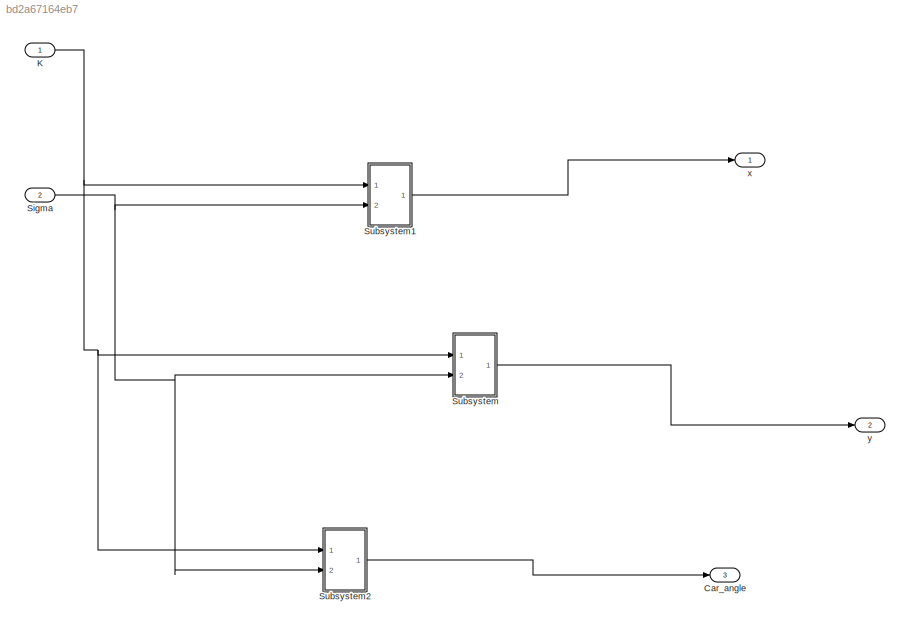
MODEL slx_bd2a67164eb7
KIND model
CONFIG AbsTol = auto
CONFIG EnableMultiTasking = off
CONFIG FixedStep = auto
CONFIG MaxStep = auto
CONFIG MinStep = auto
CONFIG RelTol = 1e-3
CONFIG SampleTimeConstraint = Unconstrained
CONFIG Solver = VariableStepAuto
CONFIG SolverName = VariableStepAuto
CONFIG StartTime = 0.0
CONFIG StopTime = 10.0
BLOCK [Outport] Car_angle
  IconDisplay = Port number
  Port = 3
BLOCK [Inport] K
  IconDisplay = Port number
BLOCK [Inport] Sigma
  IconDisplay = Port number
  Port = 2
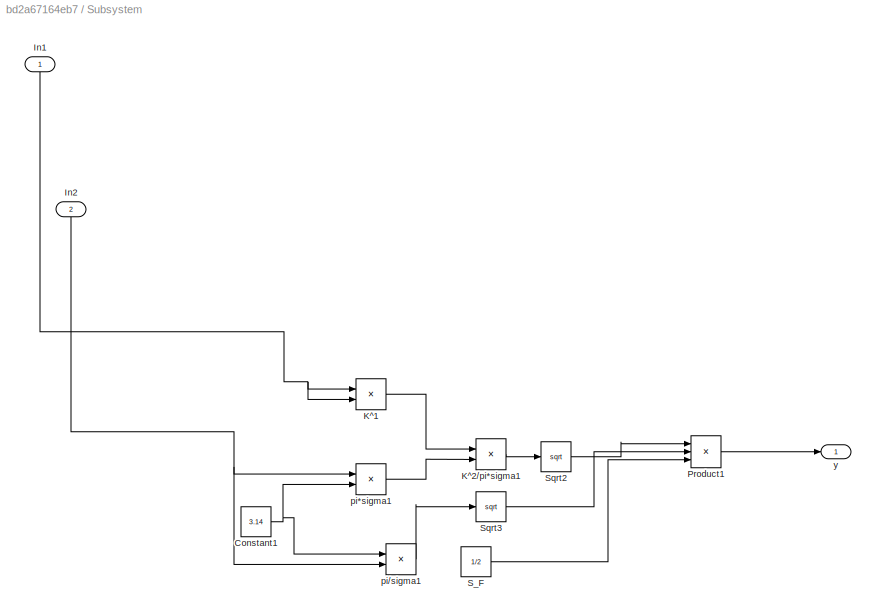
BLOCK [SubSystem] Subsystem
  Ports = [2, 1]
  RequestExecContextInheritance = off
  Variant = off
BLOCK [Constant] Subsystem/Constant1
  Value = 3.14
BLOCK [Inport] Subsystem/In1
  IconDisplay = Port number
BLOCK [Inport] Subsystem/In2
  IconDisplay = Port number
  Port = 2
BLOCK [Product] Subsystem/K^1
  InputSameDT = off
  OutDataTypeStr = Inherit: Inherit via internal rule
  Ports = [2, 1]
  RndMeth = Floor
  SaturateOnIntegerOverflow = off
BLOCK [Product] Subsystem/K^2//pi*sigma1
  InputSameDT = off
  Inputs = */
  OutDataTypeStr = Inherit: Inherit via internal rule
  Ports = [2, 1]
  RndMeth = Floor
  SaturateOnIntegerOverflow = off
BLOCK [Product] Subsystem/Product1
  InputSameDT = off
  Inputs = 3
  OutDataTypeStr = Inherit: Inherit via internal rule
  Ports = [3, 1]
  RndMeth = Floor
  SaturateOnIntegerOverflow = off
BLOCK [Constant] Subsystem/S_F
  Value = 1/2
BLOCK [Sqrt] Subsystem/Sqrt2
BLOCK [Sqrt] Subsystem/Sqrt3
BLOCK [Product] Subsystem/pi*sigma1
  InputSameDT = off
  OutDataTypeStr = Inherit: Inherit via internal rule
  Ports = [2, 1]
  RndMeth = Floor
  SaturateOnIntegerOverflow = off
BLOCK [Product] Subsystem/pi//sigma1
  InputSameDT = off
  Inputs = */
  OutDataTypeStr = Inherit: Inherit via internal rule
  Ports = [2, 1]
  RndMeth = Floor
  SaturateOnIntegerOverflow = off
BLOCK [Outport] Subsystem/y
  IconDisplay = Port number
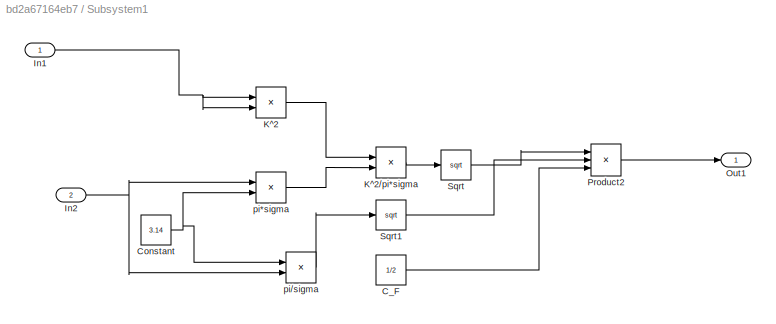
BLOCK [SubSystem] Subsystem1
  Ports = [2, 1]
  RequestExecContextInheritance = off
  Variant = off
BLOCK [Constant] Subsystem1/C_F
  Value = 1/2
BLOCK [Constant] Subsystem1/Constant
  Value = 3.14
BLOCK [Inport] Subsystem1/In1
  IconDisplay = Port number
BLOCK [Inport] Subsystem1/In2
  IconDisplay = Port number
  Port = 2
BLOCK [Product] Subsystem1/K^2
  InputSameDT = off
  OutDataTypeStr = Inherit: Inherit via internal rule
  Ports = [2, 1]
  RndMeth = Floor
  SaturateOnIntegerOverflow = off
BLOCK [Product] Subsystem1/K^2//pi*sigma
  InputSameDT = off
  Inputs = */
  OutDataTypeStr = Inherit: Inherit via internal rule
  Ports = [2, 1]
  RndMeth = Floor
  SaturateOnIntegerOverflow = off
BLOCK [Outport] Subsystem1/Out1
  IconDisplay = Port number
BLOCK [Product] Subsystem1/Product2
  InputSameDT = off
  Inputs = 3
  OutDataTypeStr = Inherit: Inherit via internal rule
  Ports = [3, 1]
  RndMeth = Floor
  SaturateOnIntegerOverflow = off
BLOCK [Sqrt] Subsystem1/Sqrt
BLOCK [Sqrt] Subsystem1/Sqrt1
BLOCK [Product] Subsystem1/pi*sigma
  InputSameDT = off
  OutDataTypeStr = Inherit: Inherit via internal rule
  Ports = [2, 1]
  RndMeth = Floor
  SaturateOnIntegerOverflow = off
BLOCK [Product] Subsystem1/pi//sigma
  InputSameDT = off
  Inputs = */
  OutDataTypeStr = Inherit: Inherit via internal rule
  Ports = [2, 1]
  RndMeth = Floor
  SaturateOnIntegerOverflow = off
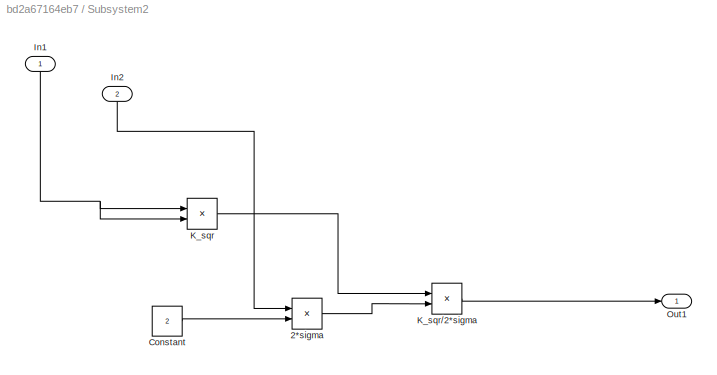
BLOCK [SubSystem] Subsystem2
  Ports = [2, 1]
  RequestExecContextInheritance = off
  Variant = off
BLOCK [Product] Subsystem2/2*sigma
  InputSameDT = off
  OutDataTypeStr = Inherit: Inherit via internal rule
  Ports = [2, 1]
  RndMeth = Floor
  SaturateOnIntegerOverflow = off
BLOCK [Constant] Subsystem2/Constant
  Value = 2
BLOCK [Inport] Subsystem2/In1
  IconDisplay = Port number
BLOCK [Inport] Subsystem2/In2
  IconDisplay = Port number
  Port = 2
BLOCK [Product] Subsystem2/K_sqr
  InputSameDT = off
  OutDataTypeStr = Inherit: Inherit via internal rule
  Ports = [2, 1]
  RndMeth = Floor
  SaturateOnIntegerOverflow = off
BLOCK [Product] Subsystem2/K_sqr//2*sigma
  InputSameDT = off
  Inputs = */
  OutDataTypeStr = Inherit: Inherit via internal rule
  Ports = [2, 1]
  RndMeth = Floor
  SaturateOnIntegerOverflow = off
BLOCK [Outport] Subsystem2/Out1
  IconDisplay = Port number
BLOCK [Outport] x
  IconDisplay = Port number
BLOCK [Outport] y
  IconDisplay = Port number
  Port = 2
NET K:1 -> Subsystem1:1, Subsystem2:1, Subsystem:1
NET Sigma:1 -> Subsystem1:2, Subsystem2:2, Subsystem:2
NET Subsystem/Constant1:1 -> Subsystem/pi*sigma1:2, Subsystem/pi//sigma1:1
NET Subsystem/In1:1 -> Subsystem/K^1:1, Subsystem/K^1:2
NET Subsystem/In2:1 -> Subsystem/pi*sigma1:1, Subsystem/pi//sigma1:2
LINE Subsystem/K^1:1 -> Subsystem/K^2//pi*sigma1:1
LINE Subsystem/K^2//pi*sigma1:1 -> Subsystem/Sqrt2:1
LINE Subsystem/Product1:1 -> Subsystem/y:1
LINE Subsystem/S_F:1 -> Subsystem/Product1:3
LINE Subsystem/Sqrt2:1 -> Subsystem/Product1:1
LINE Subsystem/Sqrt3:1 -> Subsystem/Product1:2
LINE Subsystem/pi*sigma1:1 -> Subsystem/K^2//pi*sigma1:2
LINE Subsystem/pi//sigma1:1 -> Subsystem/Sqrt3:1
LINE Subsystem1/C_F:1 -> Subsystem1/Product2:3
NET Subsystem1/Constant:1 -> Subsystem1/pi*sigma:2, Subsystem1/pi//sigma:1
NET Subsystem1/In1:1 -> Subsystem1/K^2:1, Subsystem1/K^2:2
NET Subsystem1/In2:1 -> Subsystem1/pi*sigma:1, Subsystem1/pi//sigma:2
LINE Subsystem1/K^2//pi*sigma:1 -> Subsystem1/Sqrt:1
LINE Subsystem1/K^2:1 -> Subsystem1/K^2//pi*sigma:1
LINE Subsystem1/Product2:1 -> Subsystem1/Out1:1
LINE Subsystem1/Sqrt1:1 -> Subsystem1/Product2:2
LINE Subsystem1/Sqrt:1 -> Subsystem1/Product2:1
LINE Subsystem1/pi*sigma:1 -> Subsystem1/K^2//pi*sigma:2
LINE Subsystem1/pi//sigma:1 -> Subsystem1/Sqrt1:1
LINE Subsystem1:1 -> x:1
LINE Subsystem2/2*sigma:1 -> Subsystem2/K_sqr//2*sigma:2
LINE Subsystem2/Constant:1 -> Subsystem2/2*sigma:2
NET Subsystem2/In1:1 -> Subsystem2/K_sqr:1, Subsystem2/K_sqr:2
LINE Subsystem2/In2:1 -> Subsystem2/2*sigma:1
LINE Subsystem2/K_sqr//2*sigma:1 -> Subsystem2/Out1:1
LINE Subsystem2/K_sqr:1 -> Subsystem2/K_sqr//2*sigma:1
LINE Subsystem2:1 -> Car_angle:1
LINE Subsystem:1 -> y:1
note: NET lines group one-source signal fan-out (src -> all destinations, sorted); 1:1 wires keep LINE
